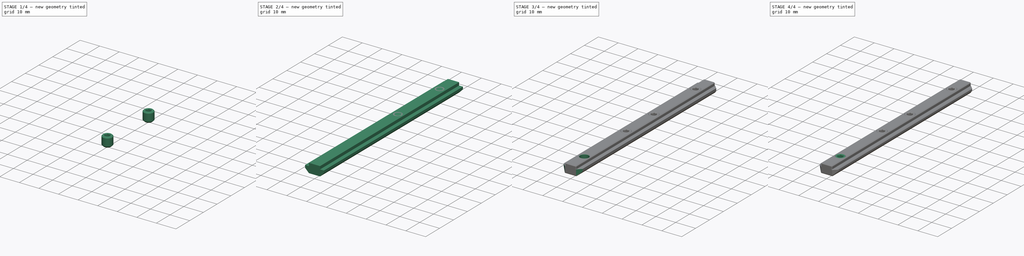
[diagram: build sequence overview — one tinted view per stage of 4, left to right]
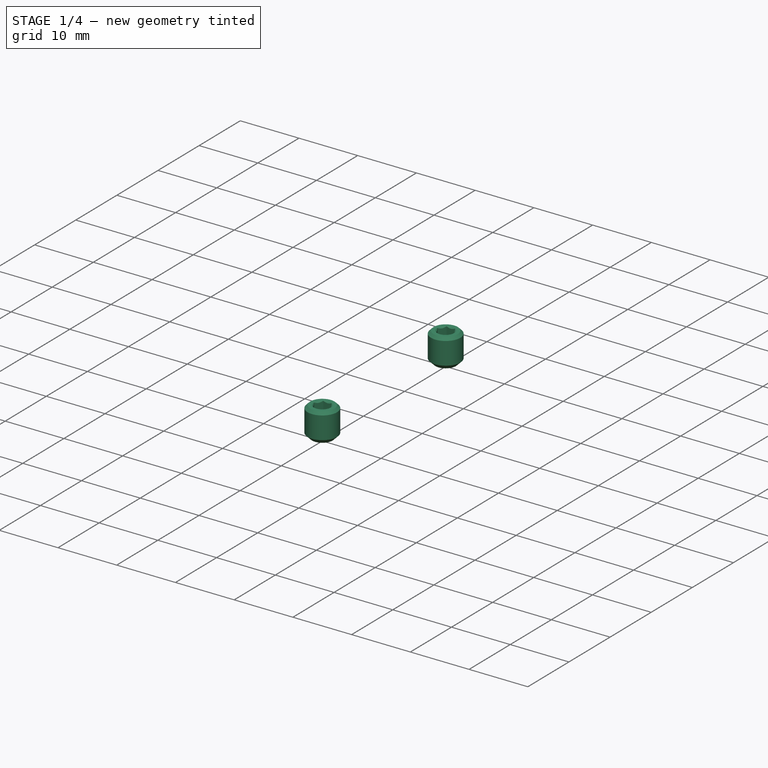
[diagram: stage 1 of 4 — iso view after this stage's code; geometry added in this stage tinted green]
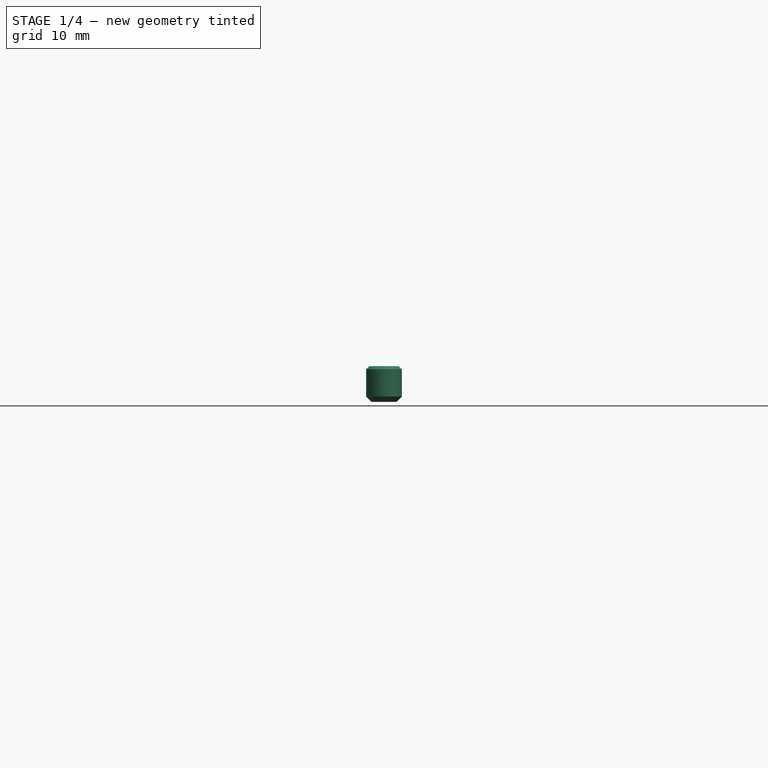
[diagram: stage 1 of 4 — front view after this stage's code; geometry added in this stage tinted green]
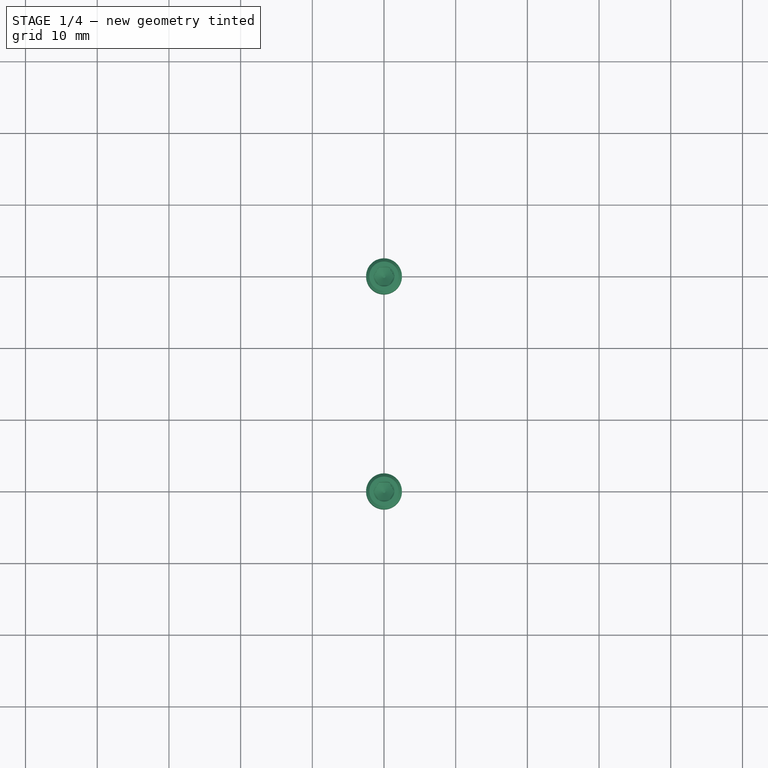
[diagram: stage 1 of 4 — top view after this stage's code; geometry added in this stage tinted green]
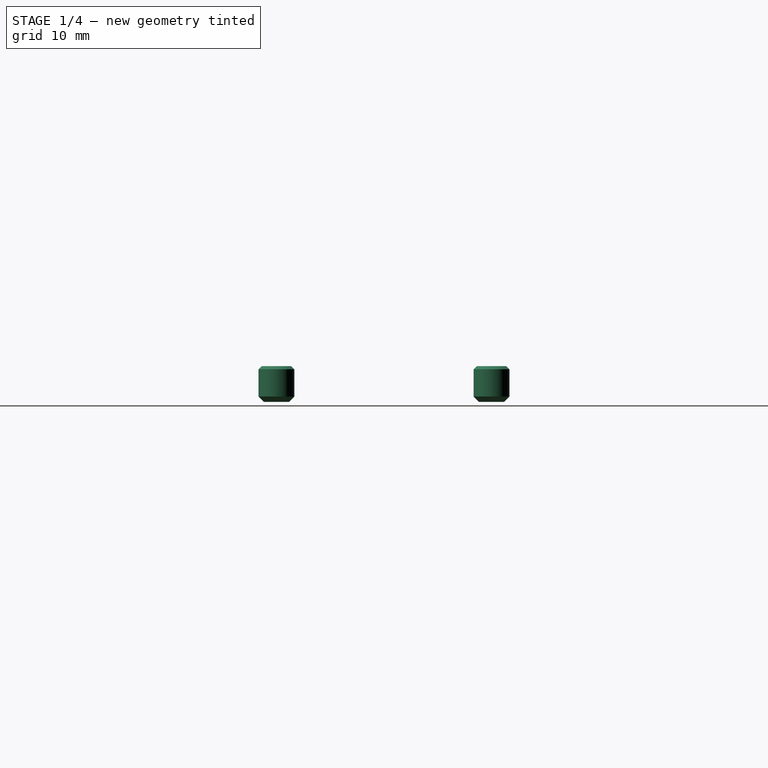
[diagram: stage 1 of 4 — right view after this stage's code; geometry added in this stage tinted green]
FCSTD DOCUMENT  (FreeCAD 0.21R33668 +7 (Git))
Label: 2020 Extrusion Straight Internal Connector
License: All rights reserved
LicenseURL: http://en.wikipedia.org/wiki/All_rights_reserved
objects: Part::FeaturePython×4, Sketcher::SketchObject×3, PartDesign::Chamfer×2, PartDesign::Pad×1, PartDesign::Pocket×1, PartDesign::Hole×1, PartDesign::Body×1
note: 18 computed .brp shape members not serialized (recipe doc carries the construction recipe); baked Part::Feature solids carry a one-line shape summary decoded from their .brp

FEATURE [Part::FeaturePython] Screw002  label="M5x5-Screw005"  # Fasteners workbench fastener (typed FeaturePython)
  Placement = pos=(1e-16,10,-0.3) rot=(0,0,1;0rad)
  diameter = 8
  invert = false
  leftHanded = false
  length = 0
  lengthCustom = 5
  matchOuter = false
  offset = 0
  thread = false
  type = 41
FEATURE [Part::FeaturePython] Screw003  label="M5x5-Screw006"  # Fasteners workbench fastener (typed FeaturePython)
  Placement = pos=(1e-16,40,-0.3) rot=(0,0,1;0rad)
  diameter = 8
  invert = false
  leftHanded = false
  length = 0
  lengthCustom = 5
  matchOuter = false
  offset = 0
  thread = false
  type = 41
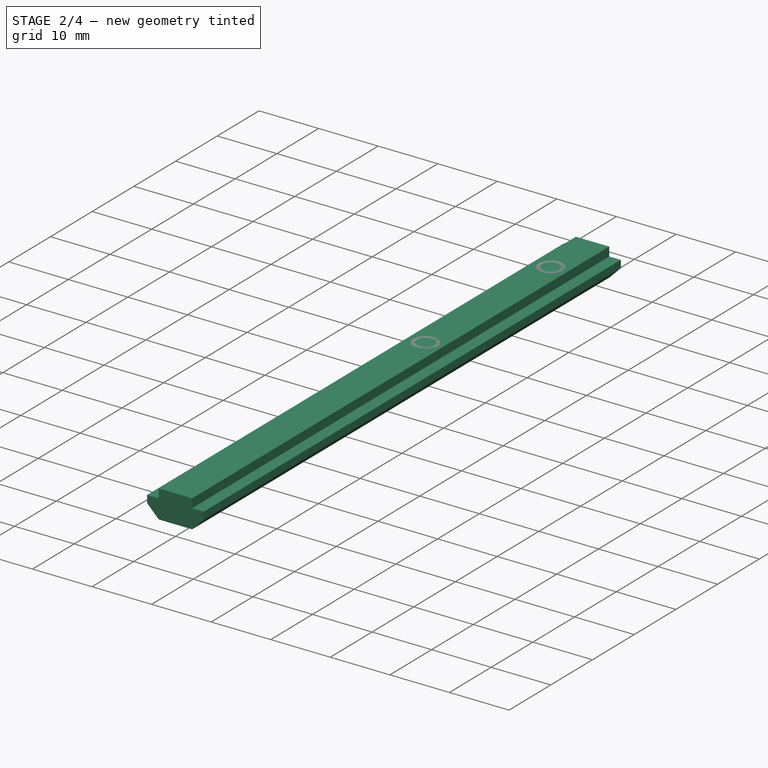
[diagram: stage 2 of 4 — iso view after this stage's code; geometry added in this stage tinted green]
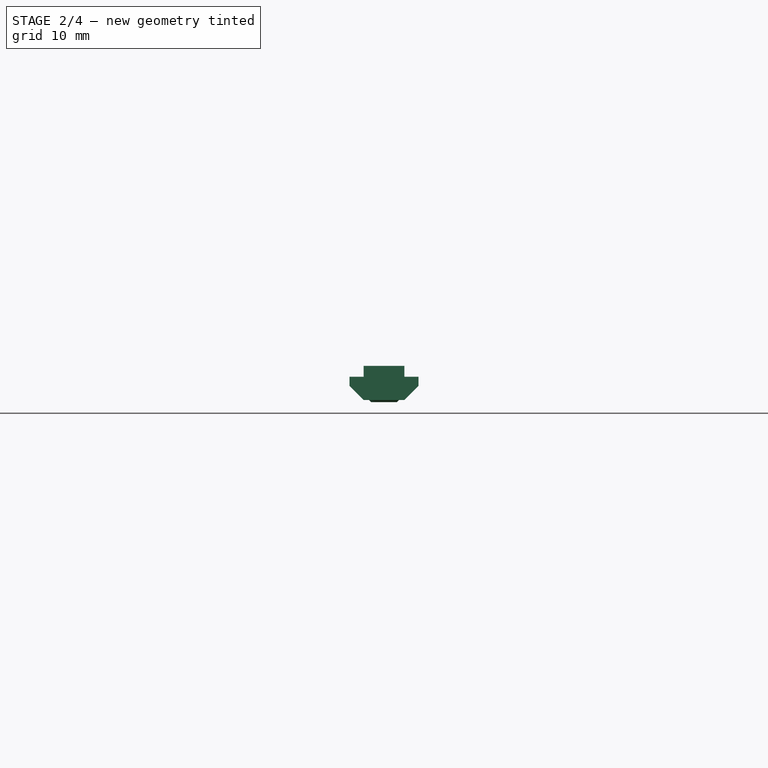
[diagram: stage 2 of 4 — front view after this stage's code; geometry added in this stage tinted green]
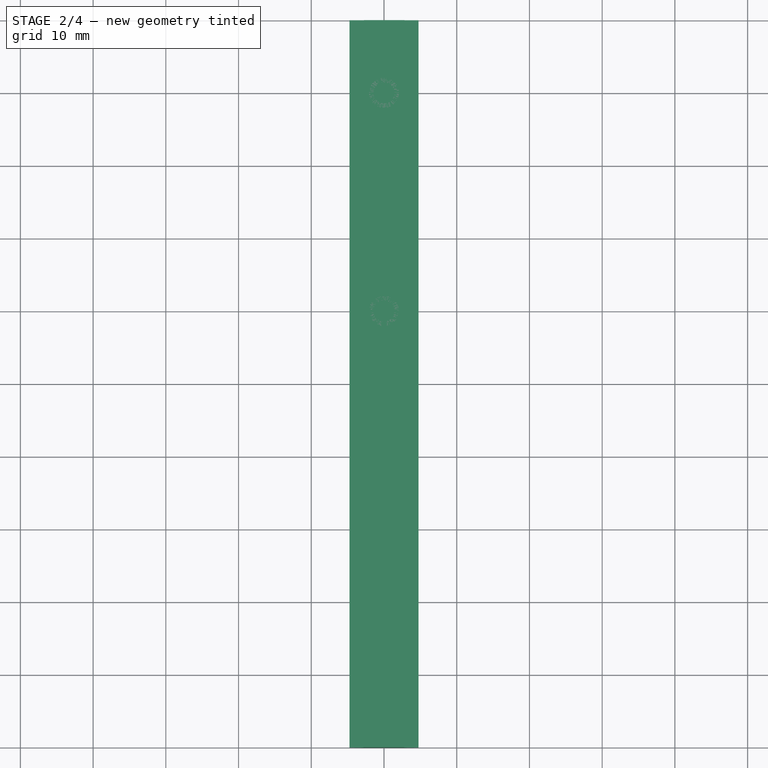
[diagram: stage 2 of 4 — top view after this stage's code; geometry added in this stage tinted green]
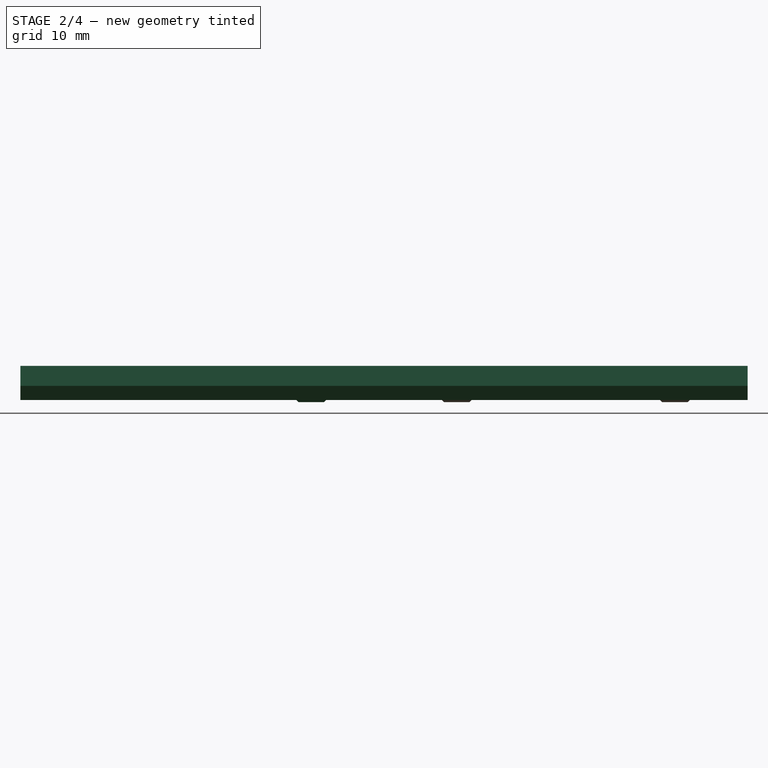
[diagram: stage 2 of 4 — right view after this stage's code; geometry added in this stage tinted green]
FEATURE [Sketcher::SketchObject] Sketch
  FullyConstrained = true
  MapMode = 5
  Placement = pos=(0,0,0) rot=(1,0,0;1.5708rad)
  Support = -> [XZ_Plane]
  sketch-geometry (10):
    g0: LineSegment StartX=-2.8 StartY=-0.3 StartZ=0 EndX=2.8 EndY=-0.3 EndZ=0
    g1: LineSegment StartX=2.8 StartY=-0.3 StartZ=0 EndX=2.8 EndY=-1.8 EndZ=0
    g2: LineSegment StartX=2.8 StartY=-1.8 StartZ=0 EndX=4.75 EndY=-1.8 EndZ=0
    g3: LineSegment StartX=4.75 StartY=-1.8 StartZ=0 EndX=4.75 EndY=-3.05 EndZ=0
    g4: LineSegment StartX=4.75 StartY=-3.05 StartZ=0 EndX=2.8 EndY=-5 EndZ=0
    g5: LineSegment StartX=2.8 StartY=-5 StartZ=0 EndX=-2.8 EndY=-5 EndZ=0
    g6: LineSegment StartX=-2.8 StartY=-5 StartZ=0 EndX=-4.75 EndY=-3.05 EndZ=0
    g7: LineSegment StartX=-4.75 StartY=-3.05 StartZ=0 EndX=-4.75 EndY=-1.8 EndZ=0
    g8: LineSegment StartX=-4.75 StartY=-1.8 StartZ=0 EndX=-2.8 EndY=-1.8 EndZ=0
    g9: LineSegment StartX=-2.8 StartY=-1.8 StartZ=0 EndX=-2.8 EndY=-0.3 EndZ=0
  constraints (28):
    c: Coincident(g0,g1)
    c: Vertical(g1)
    c: Coincident(g1,g2)
    c: Horizontal(g2)
    c: Coincident(g2,g3)
    c: Coincident(g3,g4)
    c: Coincident(g4,g5)
    c: Coincident(g5,g6)
    c: Coincident(g6,g7)
    c: Vertical(g7)
    c: Coincident(g7,g8)
    c: Horizontal(g8)
    c: Coincident(g8,g9)
    c: Coincident(g9,g0)
    c: Vertical(g9)
    c: Symmetric(g0,g0,g-2)
    c: DistanceX(g0,g0) = 5.6
    c: Equal(g8,g2)
    c: Equal(g1,g9)
    c: Equal(g6,g4)
    c: Equal(g3,g7)
    c: Symmetric(g5,g4,g-2)
    c: DistanceX(g7,g2) = 9.5
    c: DistanceY(g4,g0) = 4.7
    c: Perpendicular(g4,g6)
    c: DistanceY(g1,g-1) = 1.8
    c: DistanceY(g2,g0) = 1.5
    c: Vertical(g8,g5)
FEATURE [PartDesign::Pad] Pad
  Direction = (0,-1,-2e-16)
  Length = 100
  Length2 = 10
  Midplane = true
  Placement = pos=(0,0,0) rot=(1,0,0;1.5708rad)
  Profile = -> Sketch
  ReferenceAxis = -> Sketch [N_Axis]
  Type = 0
FEATURE [PartDesign::Body] Body
  Group = -> [Sketch,Pad,Sketch002,Sketch005,Pocket,Hole,Chamfer,Chamfer001]
  Origin = -> Origin
  Tip = -> Chamfer001
FEATURE [Part::FeaturePython] Screw001  label="M5x5-Screw004"  # Fasteners workbench fastener (typed FeaturePython)
  Placement = pos=(0,-10,-0.3) rot=(0,0,1;0rad)
  diameter = 8
  invert = false
  leftHanded = false
  length = 0
  lengthCustom = 5
  matchOuter = false
  offset = 0
  thread = false
  type = 41
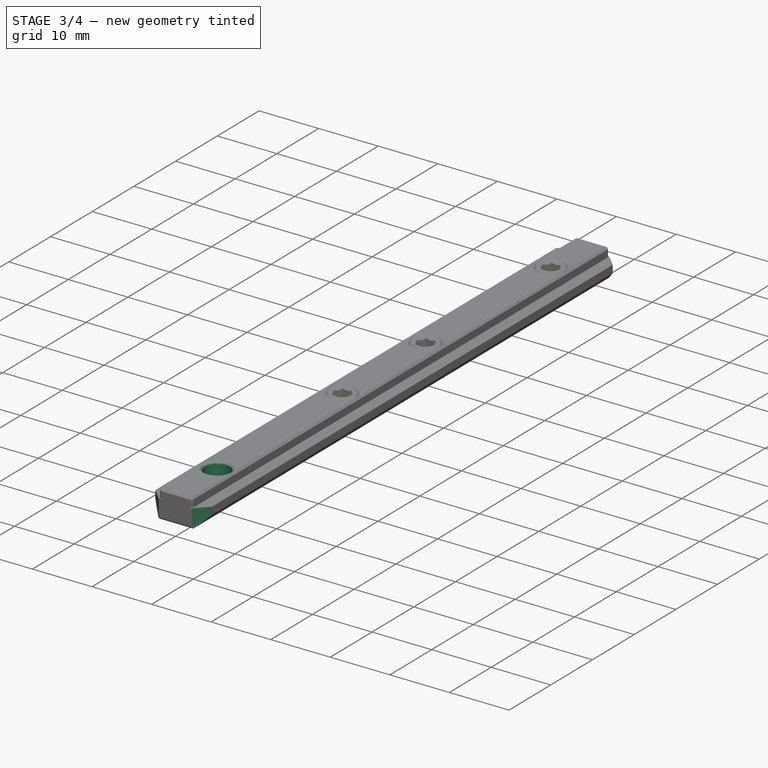
[diagram: stage 3 of 4 — iso view after this stage's code; geometry added in this stage tinted green]
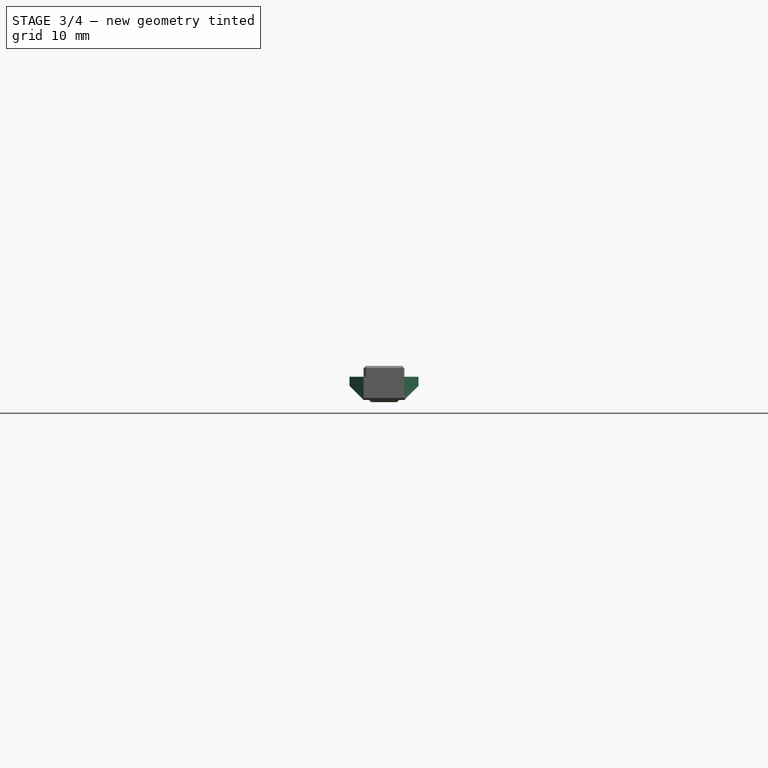
[diagram: stage 3 of 4 — front view after this stage's code; geometry added in this stage tinted green]
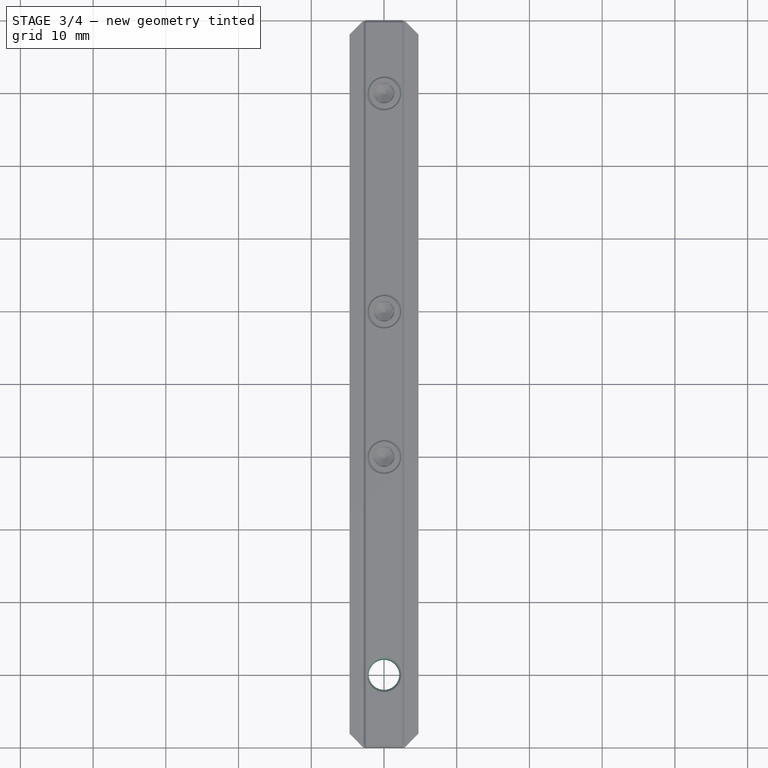
[diagram: stage 3 of 4 — top view after this stage's code; geometry added in this stage tinted green]
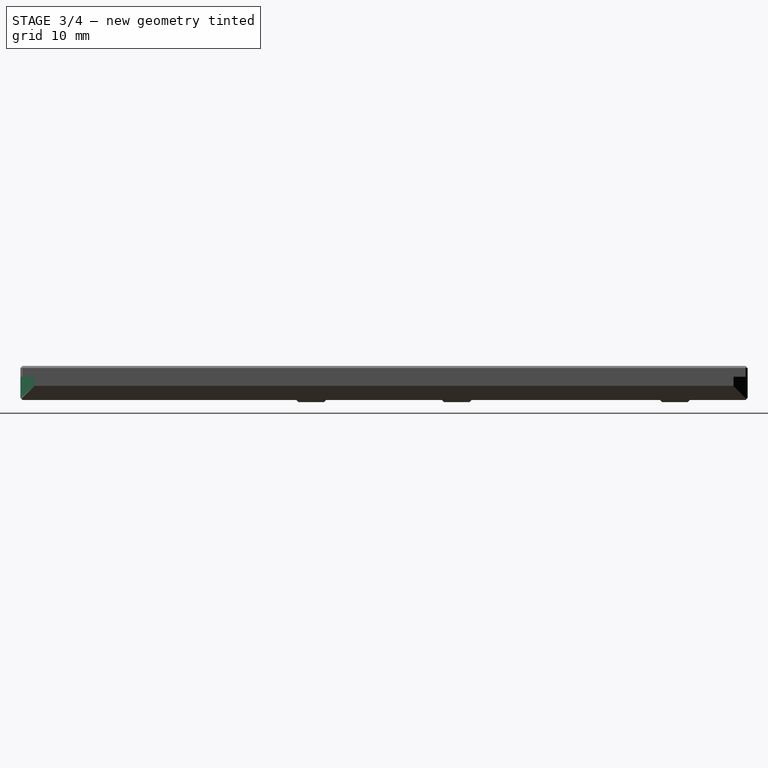
[diagram: stage 3 of 4 — right view after this stage's code; geometry added in this stage tinted green]
FEATURE [PartDesign::Pocket] Pocket
  BaseFeature = -> Pad
  Direction = (0,2e-16,-1)
  Length = 5
  Length2 = 5
  Placement = pos=(0,0,0) rot=(1,0,0;1.5708rad)
  Profile = -> Sketch002
  ReferenceAxis = -> Sketch002 [N_Axis]
  Type = 0
FEATURE [Sketcher::SketchObject] Sketch005
  FullyConstrained = false
  MapMode = 5
  Placement = pos=(0,-1e-16,-0.3) rot=(0,0,1;3.14159rad)
  Support = -> [Pocket]
  sketch-geometry (4):
    g0: Circle CenterX=0 CenterY=10 CenterZ=0 NormalX=0 NormalY=0 NormalZ=1 AngleXU=0 Radius=1.97774
    g1: Circle CenterX=0 CenterY=40 CenterZ=0 NormalX=0 NormalY=0 NormalZ=1 AngleXU=0 Radius=1.32713
    g2: Circle CenterX=0 CenterY=-10 CenterZ=0 NormalX=0 NormalY=0 NormalZ=1 AngleXU=0 Radius=1.55831
    g3: Circle CenterX=0 CenterY=-40 CenterZ=0 NormalX=0 NormalY=0 NormalZ=1 AngleXU=0 Radius=1.80703
  constraints (6):
    c: PointOnObject(g0,g-2)
    c: PointOnObject(g1,g-2)
    c: Symmetric(g3,g1,g-1)
    c: Symmetric(g0,g2,g-1)
    c: DistanceY(g2,g0) = 20
    c: DistanceY(g3,g1) = 80
FEATURE [PartDesign::Hole] Hole
  BaseFeature = -> Pocket
  CustomThreadClearance = 0
  Depth = 25
  DepthType = 0
  Diameter = 4.2
  DrillForDepth = false
  DrillPoint = 1
  DrillPointAngle = 118
  HoleCutCountersinkAngle = 90
  HoleCutCustomValues = false
  HoleCutDepth = 0
  HoleCutDiameter = 6.1
  HoleCutType = 0
  ModelThread = false
  Placement = pos=(0,0,0) rot=(1,0,0;1.5708rad)
  Profile = -> Sketch005
  Tapered = false
  TaperedAngle = 90
  ThreadClass = 0
  ThreadDepth = 25
  ThreadDepthType = 0
  ThreadDirection = 0
  ThreadFit = 0
  ThreadSize = 13
  ThreadType = 1
  Threaded = true
  UseCustomThreadClearance = false
FEATURE [PartDesign::Chamfer] Chamfer
  Angle = 45
  Base = -> Hole [Face6,Face7,Face8,Face9,Edge1,Edge4,Edge3,Edge11,Edge19,Edge15,Edge2,Edge10,Edge13,Edge17]
  BaseFeature = -> Hole
  ChamferType = 0
  FlipDirection = false
  Placement = pos=(0,0,0) rot=(1,0,0;1.5708rad)
  Size = 0.3
  Size2 = 1
  SupportTransform = false
  UseAllEdges = false
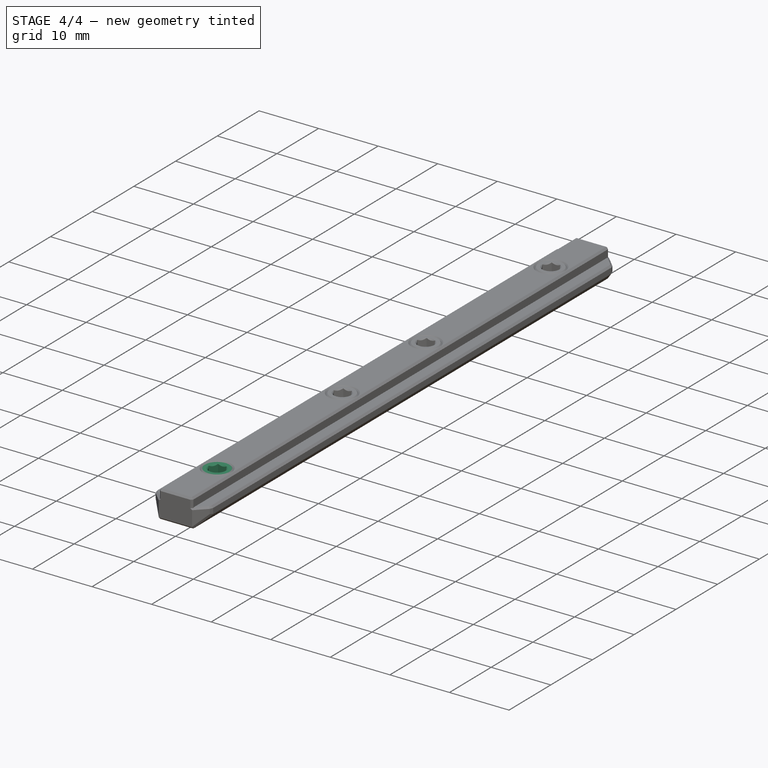
[diagram: stage 4 of 4 — iso view after this stage's code; geometry added in this stage tinted green]
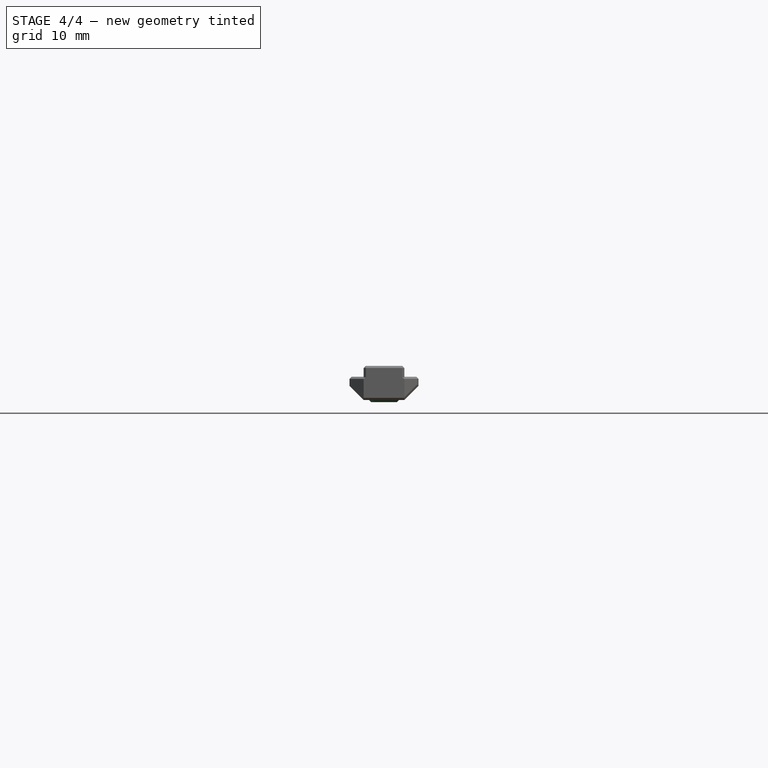
[diagram: stage 4 of 4 — front view after this stage's code; geometry added in this stage tinted green]
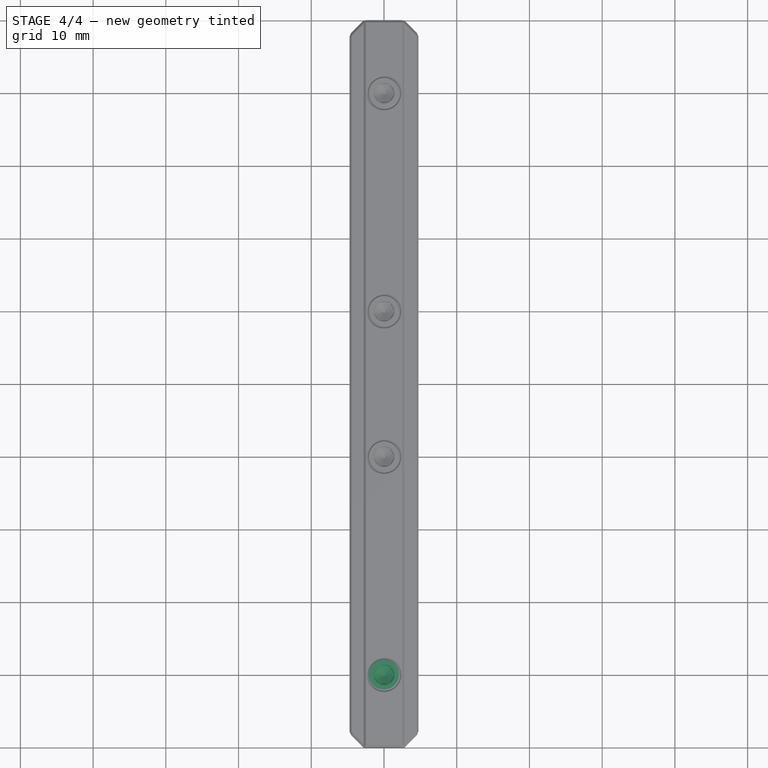
[diagram: stage 4 of 4 — top view after this stage's code; geometry added in this stage tinted green]
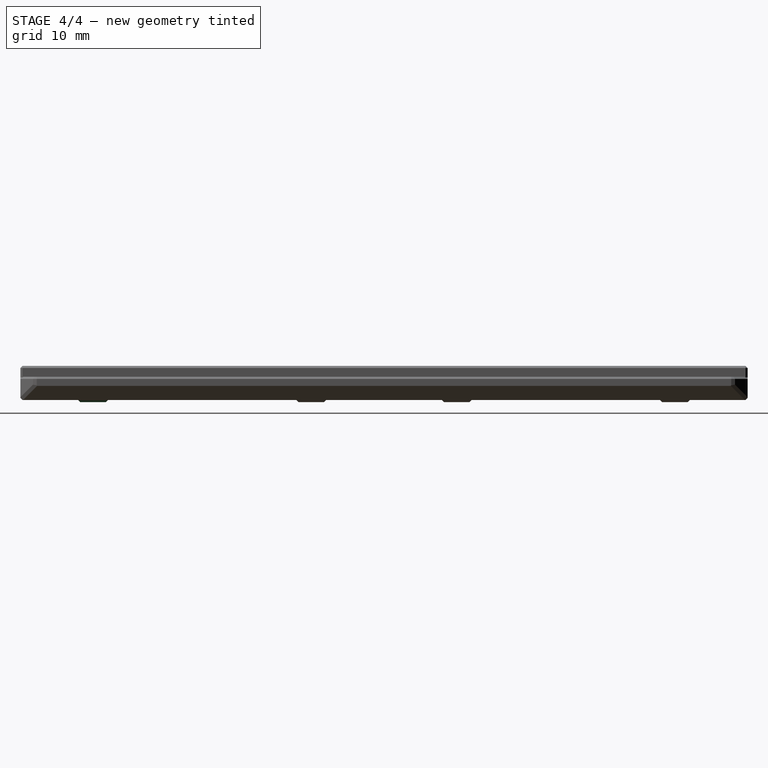
[diagram: stage 4 of 4 — right view after this stage's code; geometry added in this stage tinted green]
FEATURE [Sketcher::SketchObject] Sketch002
  ExternalGeometry = -> [Pad]
  FullyConstrained = true
  MapMode = 5
  Placement = pos=(0,-4e-16,-1.8) rot=(0,0,1;3.14159rad)
  Support = -> [Pad]
  sketch-geometry (12):
    g0: LineSegment StartX=-2.8 StartY=50 StartZ=0 EndX=-4.75 EndY=50 EndZ=0
    g1: LineSegment StartX=-4.75 StartY=50 StartZ=0 EndX=-4.75 EndY=48.05 EndZ=0
    g2: LineSegment StartX=-4.75 StartY=48.05 StartZ=0 EndX=-2.8 EndY=50 EndZ=0
    g3: LineSegment StartX=2.8 StartY=50 StartZ=0 EndX=4.75 EndY=50 EndZ=0
    g4: LineSegment StartX=4.75 StartY=50 StartZ=0 EndX=4.75 EndY=48.05 EndZ=0
    g5: LineSegment StartX=4.75 StartY=48.05 StartZ=0 EndX=2.8 EndY=50 EndZ=0
    g6: LineSegment StartX=2.8 StartY=-50 StartZ=0 EndX=4.75 EndY=-48.05 EndZ=0
    g7: LineSegment StartX=4.75 StartY=-48.05 StartZ=0 EndX=4.75 EndY=-50 EndZ=0
    g8: LineSegment StartX=4.75 StartY=-50 StartZ=0 EndX=2.8 EndY=-50 EndZ=0
    g9: LineSegment StartX=-2.8 StartY=-50 StartZ=0 EndX=-4.75 EndY=-48.05 EndZ=0
    g10: LineSegment StartX=-4.75 StartY=-48.05 StartZ=0 EndX=-4.75 EndY=-50 EndZ=0
    g11: LineSegment StartX=-4.75 StartY=-50 StartZ=0 EndX=-2.8 EndY=-50 EndZ=0
  constraints (28):
    c: Coincident(g0,g1)
    c: Coincident(g1,g2)
    c: Coincident(g2,g0)
    c: Coincident(g3,g4)
    c: Coincident(g4,g5)
    c: Coincident(g5,g3)
    c: Coincident(g6,g7)
    c: Coincident(g7,g8)
    c: Coincident(g9,g10)
    c: Coincident(g10,g11)
    c: Equal(g10,g7)
    c: Equal(g9,g5)
    c: Coincident(g9,g11)
    c: Coincident(g9,g-3)
    c: Vertical(g10)
    c: Coincident(g10,g-4)
    c: Coincident(g6,g8)
    c: Coincident(g6,g-6)
    c: Vertical(g7)
    c: Coincident(g7,g-5)
    c: Equal(g7,g8)
    c: Coincident(g3,g-6)
    c: Coincident(g3,g-5)
    c: Coincident(g0,g-4)
    c: Coincident(g0,g-3)
    c: Vertical(g1)
    c: Vertical(g4)
    c: Equal(g1,g0)
FEATURE [Part::FeaturePython] Screw  label="M5x5-Screw"  # Fasteners workbench fastener (typed FeaturePython)
  Placement = pos=(1e-16,-40,-0.3) rot=(0,0,1;0rad)
  diameter = 8
  invert = false
  leftHanded = false
  length = 0
  lengthCustom = 5
  matchOuter = false
  offset = 0
  thread = false
  type = 41
FEATURE [PartDesign::Chamfer] Chamfer001
  Angle = 45
  Base = -> Chamfer [Edge78,Edge79,Edge64,Edge65,Edge75,Edge63,Edge73,Edge74,Edge68,Edge66,Edge82,Edge81,Edge87,Edge88]
  BaseFeature = -> Chamfer
  ChamferType = 0
  FlipDirection = false
  Placement = pos=(0,0,0) rot=(1,0,0;1.5708rad)
  Size = 0.3
  Size2 = 1
  SupportTransform = false
  UseAllEdges = false
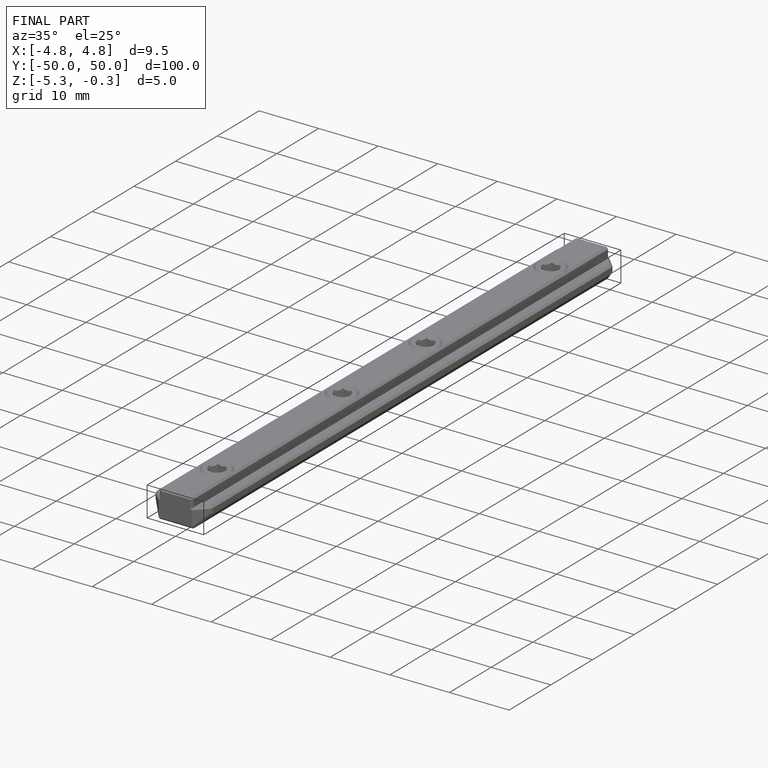
[diagram: finished part — iso view with bounding-box wireframe]
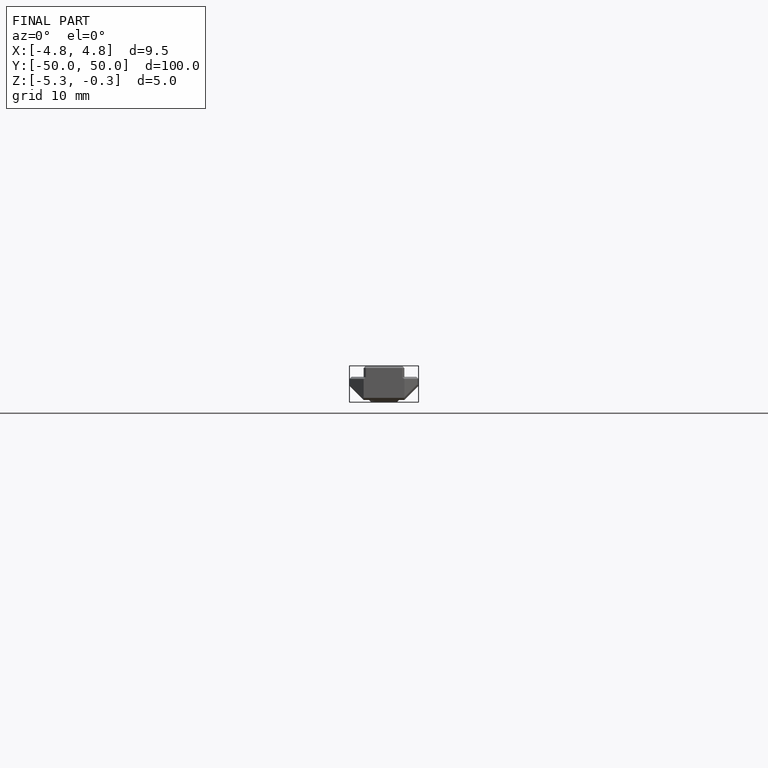
[diagram: finished part — front view with bounding-box wireframe]
